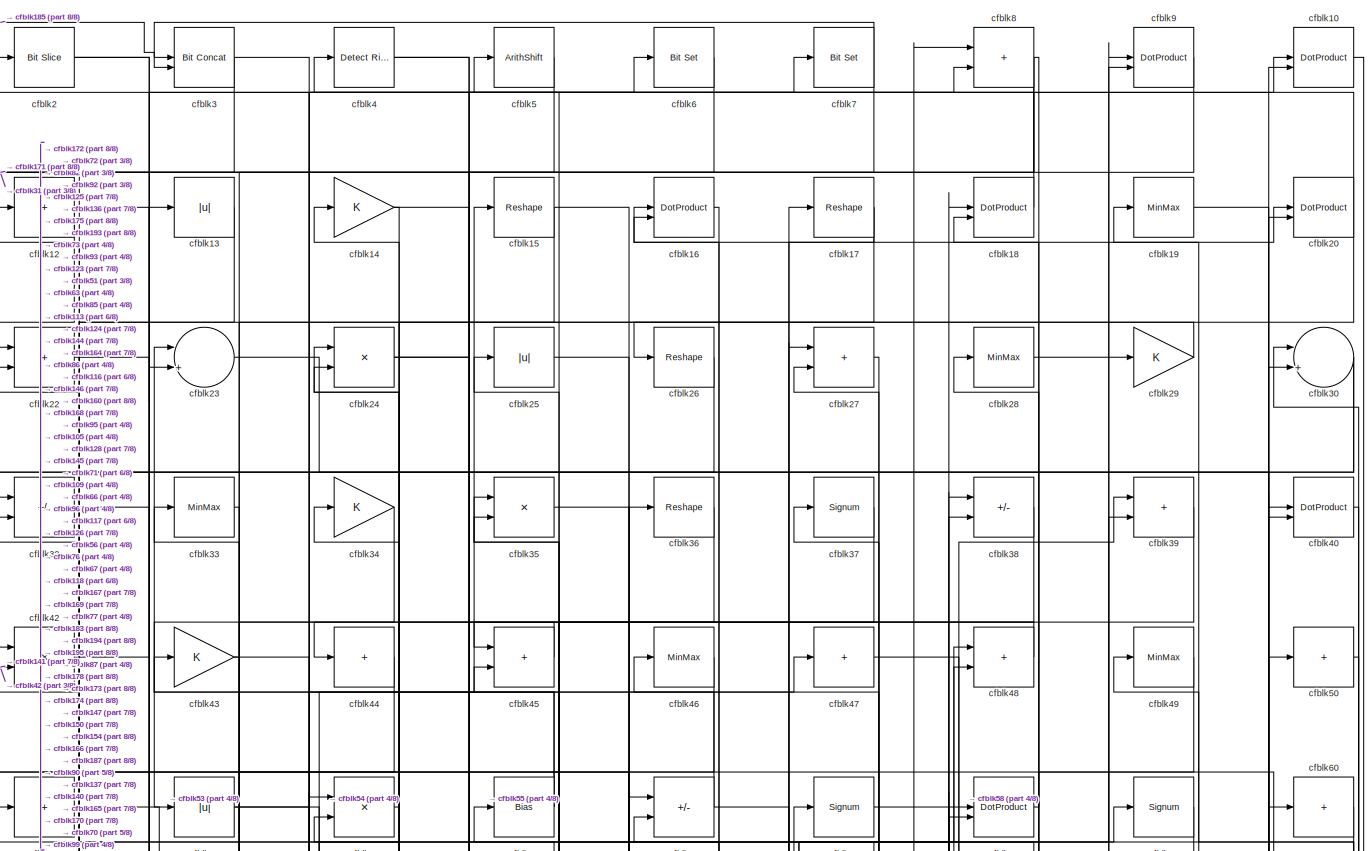
[diagram: root canvas - part 1/8, full width, top band]
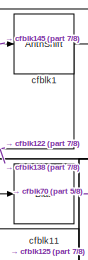
[diagram: root canvas - part 2/8, top left region]
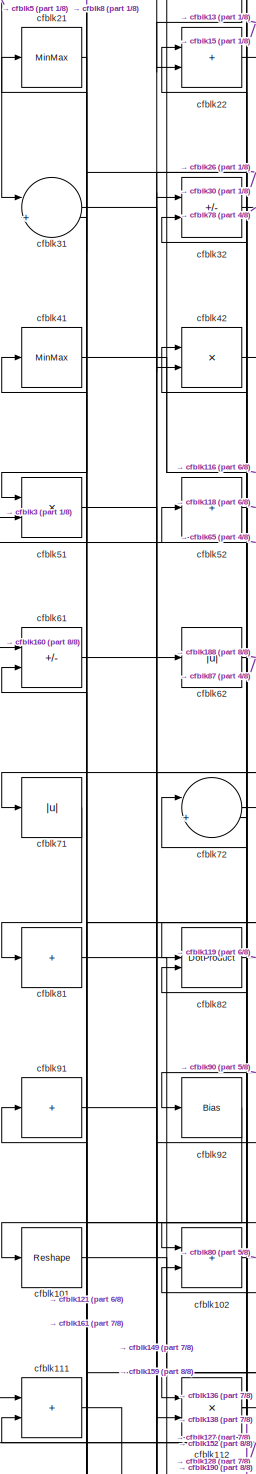
[diagram: root canvas - part 3/8, middle left region]
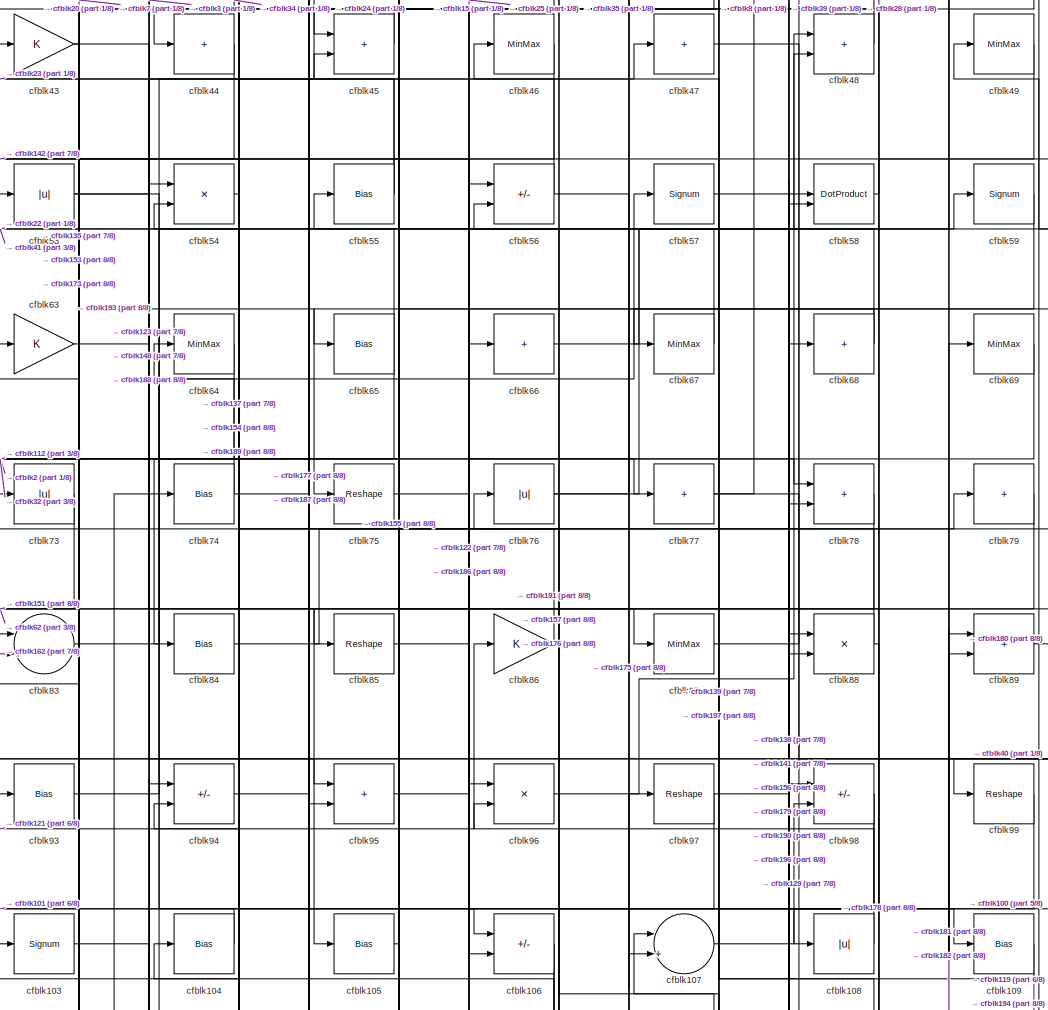
[diagram: root canvas - part 4/8, central region]
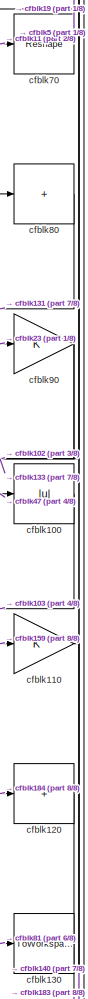
[diagram: root canvas - part 5/8, middle right region]
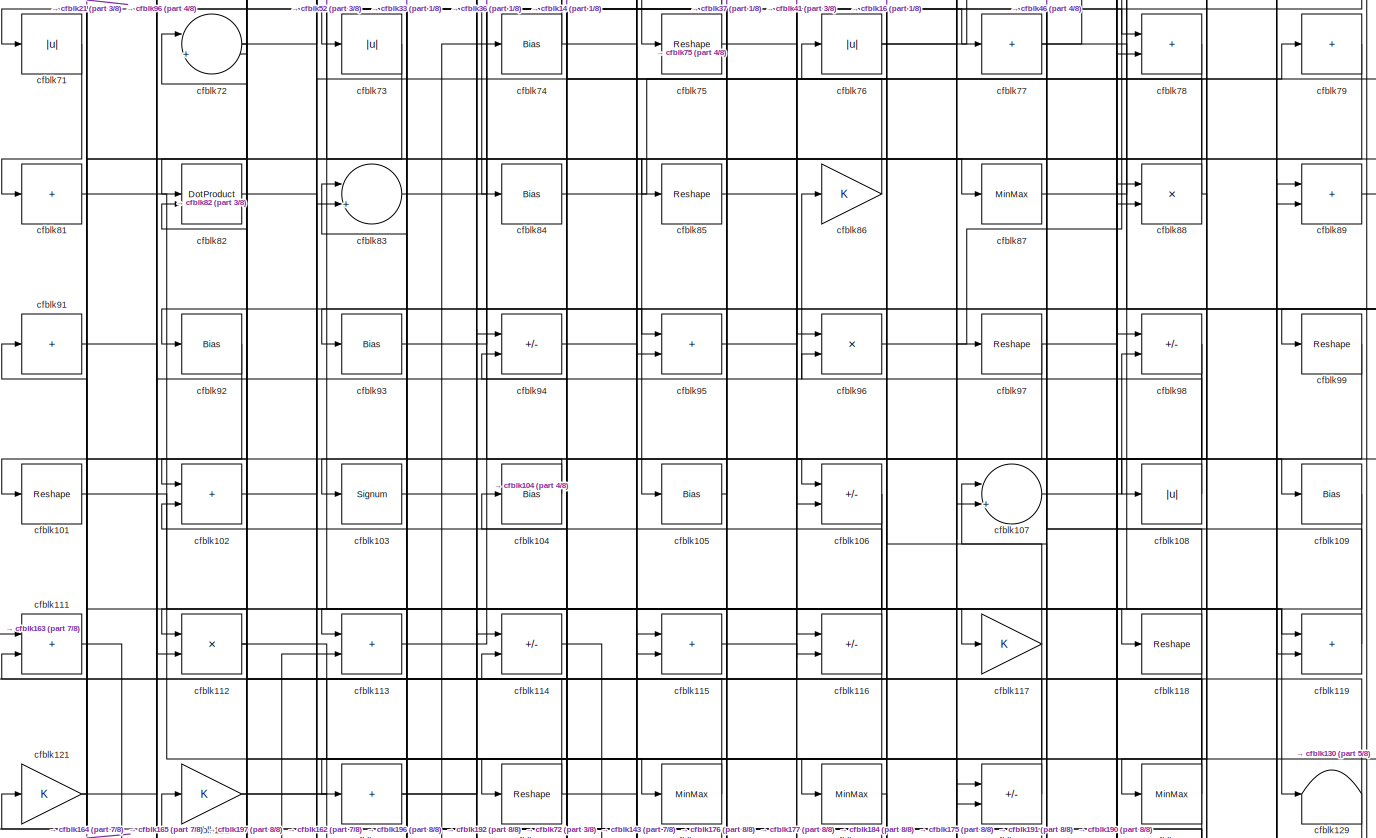
[diagram: root canvas - part 6/8, full width, middle band]
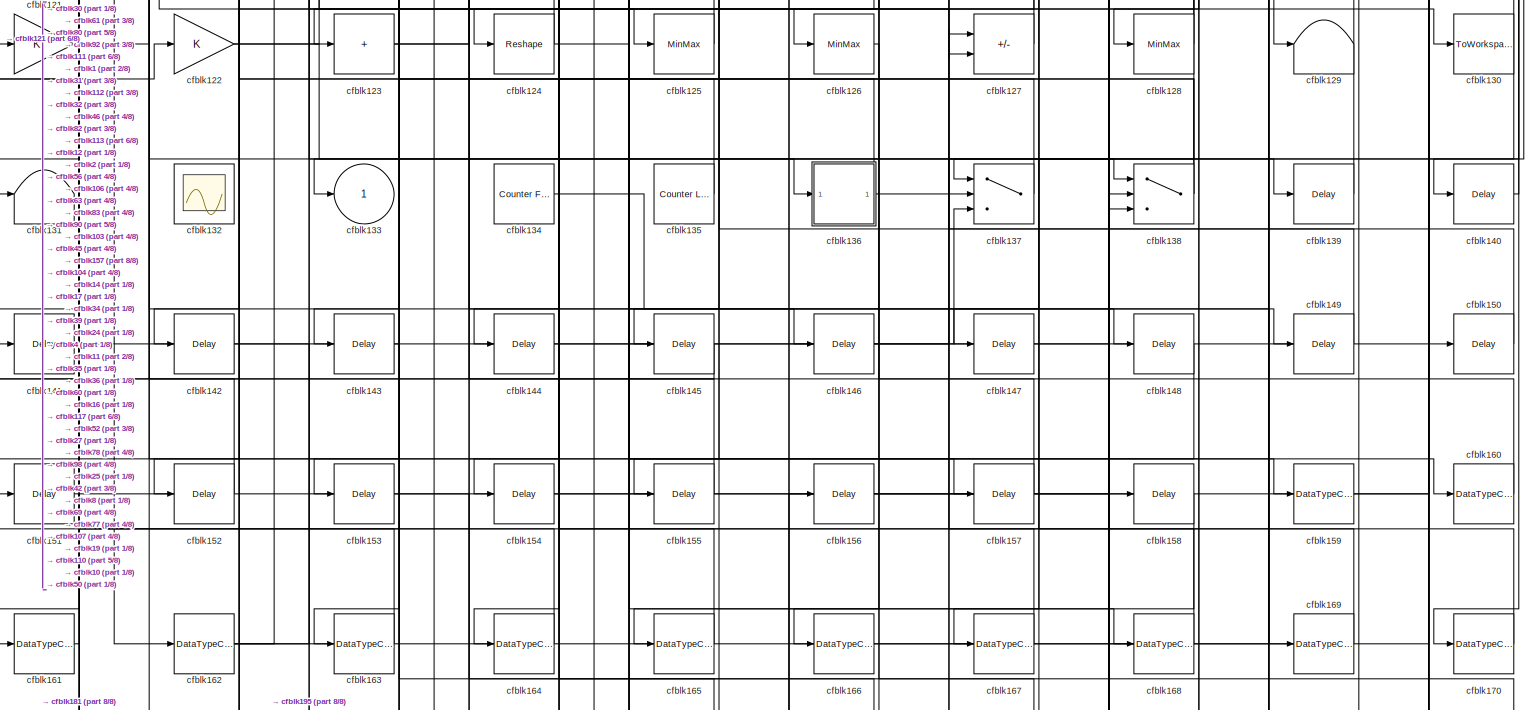
[diagram: root canvas - part 7/8, full width, bottom band]
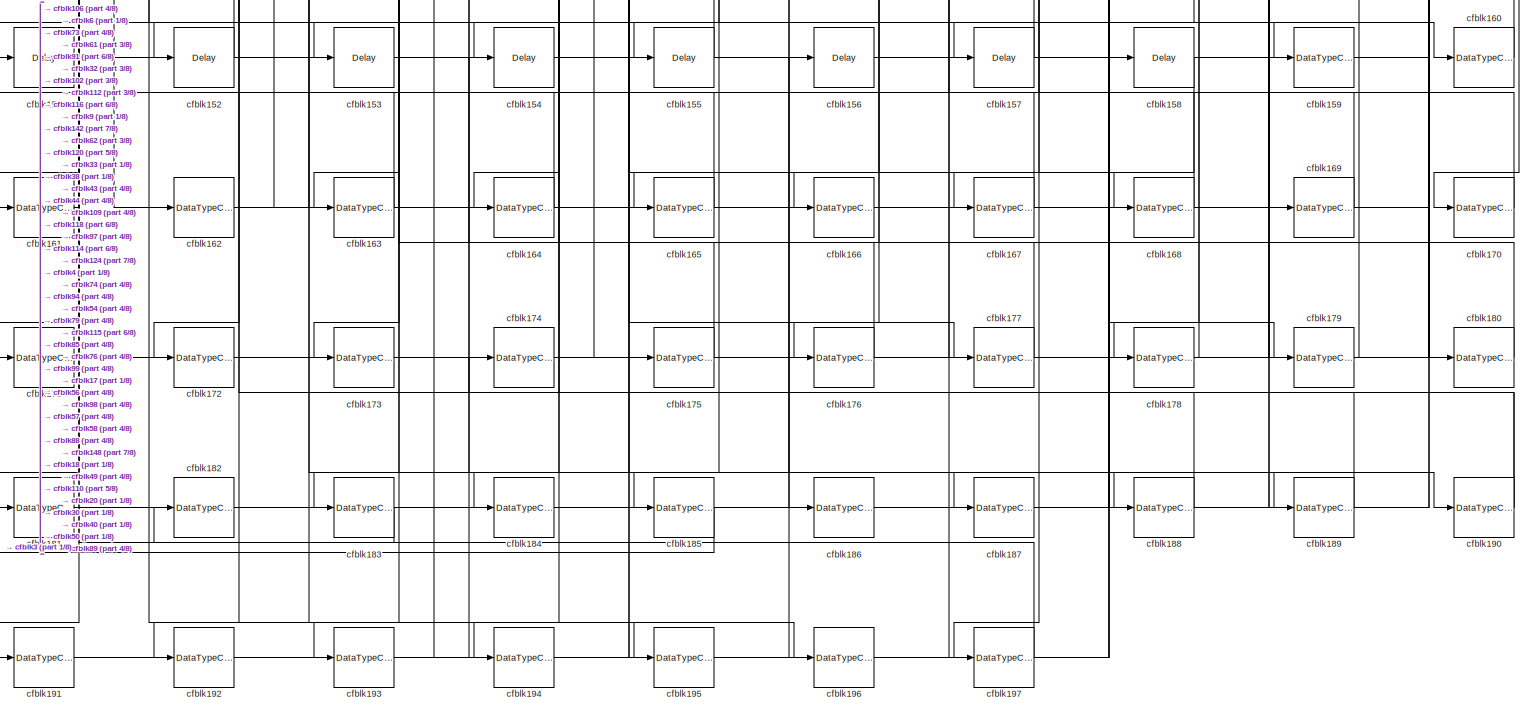
[diagram: root canvas - part 8/8, full width, bottom band]
MODEL slx_d8795197d14b
KIND model
CONFIG AbsTol = auto
CONFIG EnableMultiTasking = off
CONFIG FixedStep = auto
CONFIG MaxStep = auto
CONFIG MinStep = auto
CONFIG RelTol = 1e-3
CONFIG SampleTimeConstraint = Unconstrained
CONFIG SolverName = VariableStepAuto
CONFIG StartTime = 0.0
CONFIG StopTime = 10.0
BLOCK [ArithShift] cfblk1
  BitShiftNumber = 8
  InputPortMap = u0
BLOCK [DotProduct] cfblk10
  OutDataTypeStr = Inherit: Inherit via internal rule
BLOCK [Abs] cfblk100
  SaturateOnIntegerOverflow = off
BLOCK [Reshape] cfblk101
BLOCK [Sum] cfblk102
  IconShape = rectangular
BLOCK [Signum] cfblk103
BLOCK [Bias] cfblk104
  Bias = 0.0
  SaturateOnIntegerOverflow = off
BLOCK [Bias] cfblk105
  Bias = 0.0
  SaturateOnIntegerOverflow = off
BLOCK [Sum] cfblk106
  IconShape = rectangular
  Inputs = +-
BLOCK [Sum] cfblk107
  Inputs = |++
BLOCK [Abs] cfblk108
  SaturateOnIntegerOverflow = off
BLOCK [Bias] cfblk109
  Bias = 0.0
  SaturateOnIntegerOverflow = off
BLOCK [Bias] cfblk11
  Bias = 0.0
  SaturateOnIntegerOverflow = off
BLOCK [Gain] cfblk110
BLOCK [Sum] cfblk111
  IconShape = rectangular
BLOCK [Product] cfblk112
  Inputs = */
  RndMeth = Zero
  SaturateOnIntegerOverflow = on
BLOCK [Sum] cfblk113
  IconShape = rectangular
BLOCK [Sum] cfblk114
  IconShape = rectangular
  Inputs = +-
BLOCK [Sum] cfblk115
  IconShape = rectangular
BLOCK [Sum] cfblk116
  IconShape = rectangular
  Inputs = +-
BLOCK [Gain] cfblk117
BLOCK [Reshape] cfblk118
BLOCK [Sum] cfblk119
  IconShape = rectangular
BLOCK [Sum] cfblk12
  IconShape = rectangular
  Inputs = +
BLOCK [Sum] cfblk120
  IconShape = rectangular
  Inputs = +
BLOCK [Gain] cfblk121
BLOCK [Gain] cfblk122
BLOCK [Sum] cfblk123
  IconShape = rectangular
  Inputs = +
BLOCK [Reshape] cfblk124
BLOCK [MinMax] cfblk125
BLOCK [MinMax] cfblk126
BLOCK [Sum] cfblk127
  IconShape = rectangular
  Inputs = +-
BLOCK [MinMax] cfblk128
BLOCK [Terminator] cfblk129
BLOCK [Abs] cfblk13
  SaturateOnIntegerOverflow = off
BLOCK [ToWorkspace] cfblk130
  MaxDataPoints = inf
  SampleTime = -1
  SaveFormat = Timeseries
  VariableName = simout
BLOCK [Terminator] cfblk131
BLOCK [Scope] cfblk132
  Floating = on
  NumInputPorts = 1
  ScopeSpecificationString = Simulink.scopes.TimeScopeBlockCfg('CurrentConfiguration', extmgr.ConfigurationSet(extmgr.Configuration('Core','General UI',true,'FigureColor',[0.156862745098039 0.156862745098039 0.156862745098039]),extmgr.Configuration('Core','Source UI',true),extmgr.Configuration('Sources','WiredSimulink',true,'DataLoggingVariableName','ScopeData1','DataLoggingSaveFormat','StructureWithTime','DataLoggingLimitDat...<+2713ch>
BLOCK [Outport] cfblk133
  VectorParamsAs1DForOutWhenUnconnected = off
BLOCK [Reference] cfblk134  REF=hdlsllib/Sources/Counter
Free-Running
  SourceBlock = hdlsllib/Sources/Counter\nFree-Running
  SourceType = Counter Free-Running
BLOCK [Reference] cfblk135  REF=hdlsllib/Sources/Counter
Limited
  SourceBlock = hdlsllib/Sources/Counter\nLimited
  SourceType = Counter Limited
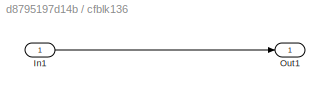
BLOCK [SubSystem] cfblk136
  LibrarySourceBlock = hdlsllib/Ports &\nSubsystems/Subsystem
BLOCK [Inport] cfblk136/In1
BLOCK [Outport] cfblk136/Out1
BLOCK [Switch] cfblk137
  InputSameDT = off
  SaturateOnIntegerOverflow = off
BLOCK [Switch] cfblk138
  InputSameDT = off
  SaturateOnIntegerOverflow = off
BLOCK [Delay] cfblk139
  InputPortMap = u0
  SampleTime = 1
BLOCK [Gain] cfblk14
BLOCK [Delay] cfblk140
  InputPortMap = u0
  SampleTime = 1
BLOCK [Delay] cfblk141
  InputPortMap = u0
  SampleTime = 1
BLOCK [Delay] cfblk142
  InputPortMap = u0
  SampleTime = 1
BLOCK [Delay] cfblk143
  InputPortMap = u0
  SampleTime = 1
BLOCK [Delay] cfblk144
  InputPortMap = u0
  SampleTime = 1
BLOCK [Delay] cfblk145
  InputPortMap = u0
  SampleTime = 1
BLOCK [Delay] cfblk146
  InputPortMap = u0
  SampleTime = 1
BLOCK [Delay] cfblk147
  InputPortMap = u0
  SampleTime = 1
BLOCK [Delay] cfblk148
  InputPortMap = u0
  SampleTime = 1
BLOCK [Delay] cfblk149
  InputPortMap = u0
  SampleTime = 1
BLOCK [Reshape] cfblk15
BLOCK [Delay] cfblk150
  InputPortMap = u0
  SampleTime = 1
BLOCK [Delay] cfblk151
  InputPortMap = u0
  SampleTime = 1
BLOCK [Delay] cfblk152
  InputPortMap = u0
  SampleTime = 1
BLOCK [Delay] cfblk153
  InputPortMap = u0
  SampleTime = 1
BLOCK [Delay] cfblk154
  InputPortMap = u0
  SampleTime = 1
BLOCK [Delay] cfblk155
  InputPortMap = u0
  SampleTime = 1
BLOCK [Delay] cfblk156
  InputPortMap = u0
  SampleTime = 1
BLOCK [Delay] cfblk157
  InputPortMap = u0
  SampleTime = 1
BLOCK [Delay] cfblk158
  InputPortMap = u0
  SampleTime = 1
BLOCK [DataTypeConversion] cfblk159
  OutDataTypeStr = uint8
  RndMeth = Floor
  SaturateOnIntegerOverflow = off
BLOCK [DotProduct] cfblk16
  OutDataTypeStr = Inherit: Inherit via internal rule
BLOCK [DataTypeConversion] cfblk160
  OutDataTypeStr = uint8
  RndMeth = Floor
  SaturateOnIntegerOverflow = off
BLOCK [DataTypeConversion] cfblk161
  OutDataTypeStr = uint8
  RndMeth = Floor
  SaturateOnIntegerOverflow = off
BLOCK [DataTypeConversion] cfblk162
  RndMeth = Floor
  SaturateOnIntegerOverflow = off
BLOCK [DataTypeConversion] cfblk163
  OutDataTypeStr = uint8
  RndMeth = Floor
  SaturateOnIntegerOverflow = off
BLOCK [DataTypeConversion] cfblk164
  OutDataTypeStr = uint8
  RndMeth = Floor
  SaturateOnIntegerOverflow = off
BLOCK [DataTypeConversion] cfblk165
  OutDataTypeStr = uint8
  RndMeth = Floor
  SaturateOnIntegerOverflow = off
BLOCK [DataTypeConversion] cfblk166
  OutDataTypeStr = uint8
  RndMeth = Floor
  SaturateOnIntegerOverflow = off
BLOCK [DataTypeConversion] cfblk167
  OutDataTypeStr = uint8
  RndMeth = Floor
  SaturateOnIntegerOverflow = off
BLOCK [DataTypeConversion] cfblk168
  OutDataTypeStr = uint8
  RndMeth = Floor
  SaturateOnIntegerOverflow = off
BLOCK [DataTypeConversion] cfblk169
  OutDataTypeStr = uint8
  RndMeth = Floor
  SaturateOnIntegerOverflow = off
BLOCK [Reshape] cfblk17
BLOCK [DataTypeConversion] cfblk170
  OutDataTypeStr = uint8
  RndMeth = Floor
  SaturateOnIntegerOverflow = off
BLOCK [DataTypeConversion] cfblk171
  OutDataTypeStr = uint8
  RndMeth = Floor
  SaturateOnIntegerOverflow = off
BLOCK [DataTypeConversion] cfblk172
  OutDataTypeStr = uint8
  RndMeth = Floor
  SaturateOnIntegerOverflow = off
BLOCK [DataTypeConversion] cfblk173
  OutDataTypeStr = uint8
  RndMeth = Floor
  SaturateOnIntegerOverflow = off
BLOCK [DataTypeConversion] cfblk174
  OutDataTypeStr = uint8
  RndMeth = Floor
  SaturateOnIntegerOverflow = off
BLOCK [DataTypeConversion] cfblk175
  RndMeth = Floor
  SaturateOnIntegerOverflow = off
BLOCK [DataTypeConversion] cfblk176
  OutDataTypeStr = uint8
  RndMeth = Floor
  SaturateOnIntegerOverflow = off
BLOCK [DataTypeConversion] cfblk177
  OutDataTypeStr = uint8
  RndMeth = Floor
  SaturateOnIntegerOverflow = off
BLOCK [DataTypeConversion] cfblk178
  OutDataTypeStr = uint8
  RndMeth = Floor
  SaturateOnIntegerOverflow = off
BLOCK [DataTypeConversion] cfblk179
  OutDataTypeStr = uint8
  RndMeth = Floor
  SaturateOnIntegerOverflow = off
BLOCK [DotProduct] cfblk18
  OutDataTypeStr = Inherit: Inherit via internal rule
BLOCK [DataTypeConversion] cfblk180
  OutDataTypeStr = uint8
  RndMeth = Floor
  SaturateOnIntegerOverflow = off
BLOCK [DataTypeConversion] cfblk181
  OutDataTypeStr = uint8
  RndMeth = Floor
  SaturateOnIntegerOverflow = off
BLOCK [DataTypeConversion] cfblk182
  OutDataTypeStr = uint8
  RndMeth = Floor
  SaturateOnIntegerOverflow = off
BLOCK [DataTypeConversion] cfblk183
  RndMeth = Floor
  SaturateOnIntegerOverflow = off
BLOCK [DataTypeConversion] cfblk184
  OutDataTypeStr = uint8
  RndMeth = Floor
  SaturateOnIntegerOverflow = off
BLOCK [DataTypeConversion] cfblk185
  OutDataTypeStr = uint8
  RndMeth = Floor
  SaturateOnIntegerOverflow = off
BLOCK [DataTypeConversion] cfblk186
  OutDataTypeStr = uint8
  RndMeth = Floor
  SaturateOnIntegerOverflow = off
BLOCK [DataTypeConversion] cfblk187
  OutDataTypeStr = uint8
  RndMeth = Floor
  SaturateOnIntegerOverflow = off
BLOCK [DataTypeConversion] cfblk188
  OutDataTypeStr = uint8
  RndMeth = Floor
  SaturateOnIntegerOverflow = off
BLOCK [DataTypeConversion] cfblk189
  OutDataTypeStr = uint8
  RndMeth = Floor
  SaturateOnIntegerOverflow = off
BLOCK [MinMax] cfblk19
BLOCK [DataTypeConversion] cfblk190
  RndMeth = Floor
  SaturateOnIntegerOverflow = off
BLOCK [DataTypeConversion] cfblk191
  OutDataTypeStr = uint8
  RndMeth = Floor
  SaturateOnIntegerOverflow = off
BLOCK [DataTypeConversion] cfblk192
  OutDataTypeStr = uint8
  RndMeth = Floor
  SaturateOnIntegerOverflow = off
BLOCK [DataTypeConversion] cfblk193
  RndMeth = Floor
  SaturateOnIntegerOverflow = off
BLOCK [DataTypeConversion] cfblk194
  OutDataTypeStr = uint8
  RndMeth = Floor
  SaturateOnIntegerOverflow = off
BLOCK [DataTypeConversion] cfblk195
  OutDataTypeStr = uint8
  RndMeth = Floor
  SaturateOnIntegerOverflow = off
BLOCK [DataTypeConversion] cfblk196
  OutDataTypeStr = uint8
  RndMeth = Floor
  SaturateOnIntegerOverflow = off
BLOCK [DataTypeConversion] cfblk197
  OutDataTypeStr = uint8
  RndMeth = Floor
  SaturateOnIntegerOverflow = off
BLOCK [Reference] cfblk2  REF=hdlsllib/Logic and Bit
Operations/Bit Slice
  SourceBlock = hdlsllib/Logic and Bit\nOperations/Bit Slice
  SourceType = Bit Slice
BLOCK [DotProduct] cfblk20
  OutDataTypeStr = Inherit: Inherit via internal rule
BLOCK [MinMax] cfblk21
BLOCK [Sum] cfblk22
  IconShape = rectangular
BLOCK [Sum] cfblk23
  Inputs = |++
BLOCK [Product] cfblk24
  Inputs = */
  RndMeth = Zero
  SaturateOnIntegerOverflow = on
BLOCK [Abs] cfblk25
  SaturateOnIntegerOverflow = off
BLOCK [Reshape] cfblk26
BLOCK [Sum] cfblk27
  IconShape = rectangular
BLOCK [MinMax] cfblk28
BLOCK [Gain] cfblk29
BLOCK [Reference] cfblk3  REF=hdlsllib/Logic and Bit
Operations/Bit Concat
  SourceBlock = hdlsllib/Logic and Bit\nOperations/Bit Concat
  SourceType = Bit Concat
BLOCK [Sum] cfblk30
  Inputs = |++
BLOCK [Sum] cfblk31
  Inputs = |++
BLOCK [Sum] cfblk32
  IconShape = rectangular
  Inputs = +-
BLOCK [MinMax] cfblk33
BLOCK [Gain] cfblk34
BLOCK [Product] cfblk35
  Inputs = */
  RndMeth = Zero
  SaturateOnIntegerOverflow = on
BLOCK [Reshape] cfblk36
BLOCK [Signum] cfblk37
BLOCK [Sum] cfblk38
  IconShape = rectangular
  Inputs = +-
BLOCK [Sum] cfblk39
  IconShape = rectangular
BLOCK [Reference] cfblk4  REF=hdlsllib/Logic and Bit
Operations/Detect Rise
Nonnegative
  SourceBlock = hdlsllib/Logic and Bit\nOperations/Detect Rise\nNonnegative
  SourceType = Detect Rise Nonnegative
BLOCK [DotProduct] cfblk40
  OutDataTypeStr = Inherit: Inherit via internal rule
BLOCK [MinMax] cfblk41
BLOCK [Product] cfblk42
  Inputs = */
  RndMeth = Zero
  SaturateOnIntegerOverflow = on
BLOCK [Gain] cfblk43
BLOCK [Sum] cfblk44
  IconShape = rectangular
  Inputs = +
BLOCK [Sum] cfblk45
  IconShape = rectangular
BLOCK [MinMax] cfblk46
BLOCK [Sum] cfblk47
  IconShape = rectangular
  Inputs = +
BLOCK [Sum] cfblk48
  IconShape = rectangular
BLOCK [MinMax] cfblk49
BLOCK [ArithShift] cfblk5
  BitShiftNumber = 8
  InputPortMap = u0
BLOCK [Sum] cfblk50
  IconShape = rectangular
  Inputs = +
BLOCK [Product] cfblk51
  Inputs = */
  RndMeth = Zero
  SaturateOnIntegerOverflow = on
BLOCK [Sum] cfblk52
  IconShape = rectangular
  Inputs = +
BLOCK [Abs] cfblk53
  SaturateOnIntegerOverflow = off
BLOCK [Product] cfblk54
  Inputs = */
  RndMeth = Zero
  SaturateOnIntegerOverflow = on
BLOCK [Bias] cfblk55
  Bias = 0.0
  SaturateOnIntegerOverflow = off
BLOCK [Sum] cfblk56
  IconShape = rectangular
  Inputs = +-
BLOCK [Signum] cfblk57
BLOCK [DotProduct] cfblk58
  OutDataTypeStr = Inherit: Inherit via internal rule
BLOCK [Signum] cfblk59
BLOCK [Reference] cfblk6  REF=simulink/Logic and Bit
Operations/Bit Set
  LibrarySourceBlock = hdlsllib/Logic and Bit\nOperations/Bit Set
  SourceBlock = simulink/Logic and Bit\nOperations/Bit Set
  SourceType = Bit Set
BLOCK [Sum] cfblk60
  IconShape = rectangular
  Inputs = +
BLOCK [Sum] cfblk61
  IconShape = rectangular
  Inputs = +-
BLOCK [Abs] cfblk62
  SaturateOnIntegerOverflow = off
BLOCK [Gain] cfblk63
BLOCK [MinMax] cfblk64
BLOCK [Bias] cfblk65
  Bias = 0.0
  SaturateOnIntegerOverflow = off
BLOCK [Sum] cfblk66
  IconShape = rectangular
  Inputs = +
BLOCK [MinMax] cfblk67
BLOCK [Sum] cfblk68
  IconShape = rectangular
  Inputs = +
BLOCK [MinMax] cfblk69
BLOCK [Reference] cfblk7  REF=simulink/Logic and Bit
Operations/Bit Set
  LibrarySourceBlock = hdlsllib/Logic and Bit\nOperations/Bit Set
  SourceBlock = simulink/Logic and Bit\nOperations/Bit Set
  SourceType = Bit Set
BLOCK [Reshape] cfblk70
BLOCK [Abs] cfblk71
  SaturateOnIntegerOverflow = off
BLOCK [Sum] cfblk72
  Inputs = |++
BLOCK [Abs] cfblk73
  SaturateOnIntegerOverflow = off
BLOCK [Bias] cfblk74
  Bias = 0.0
  SaturateOnIntegerOverflow = off
BLOCK [Reshape] cfblk75
BLOCK [Abs] cfblk76
  SaturateOnIntegerOverflow = off
BLOCK [Sum] cfblk77
  IconShape = rectangular
  Inputs = +
BLOCK [Sum] cfblk78
  IconShape = rectangular
BLOCK [Sum] cfblk79
  IconShape = rectangular
  Inputs = +
BLOCK [Sum] cfblk8
  IconShape = rectangular
BLOCK [Sum] cfblk80
  IconShape = rectangular
  Inputs = +
BLOCK [Sum] cfblk81
  IconShape = rectangular
  Inputs = +
BLOCK [DotProduct] cfblk82
  OutDataTypeStr = Inherit: Inherit via internal rule
BLOCK [Sum] cfblk83
  Inputs = |++
BLOCK [Bias] cfblk84
  Bias = 0.0
  SaturateOnIntegerOverflow = off
BLOCK [Reshape] cfblk85
BLOCK [Gain] cfblk86
BLOCK [MinMax] cfblk87
BLOCK [Product] cfblk88
  Inputs = */
  RndMeth = Zero
  SaturateOnIntegerOverflow = on
BLOCK [Sum] cfblk89
  IconShape = rectangular
BLOCK [DotProduct] cfblk9
  OutDataTypeStr = Inherit: Inherit via internal rule
BLOCK [Gain] cfblk90
BLOCK [Sum] cfblk91
  IconShape = rectangular
  Inputs = +
BLOCK [Bias] cfblk92
  Bias = 0.0
  SaturateOnIntegerOverflow = off
BLOCK [Bias] cfblk93
  Bias = 0.0
  SaturateOnIntegerOverflow = off
BLOCK [Sum] cfblk94
  IconShape = rectangular
  Inputs = +-
BLOCK [Sum] cfblk95
  IconShape = rectangular
BLOCK [Product] cfblk96
  Inputs = */
  RndMeth = Zero
  SaturateOnIntegerOverflow = on
BLOCK [Reshape] cfblk97
BLOCK [Sum] cfblk98
  IconShape = rectangular
  Inputs = +-
BLOCK [Reshape] cfblk99
LINE cfblk100:1 -> cfblk103:1
LINE cfblk101:1 -> cfblk117:1
LINE cfblk102:1 -> cfblk80:1
LINE cfblk103:1 -> cfblk148:1
LINE cfblk104:1 -> cfblk101:1
LINE cfblk105:1 -> cfblk35:1
NET cfblk106:1 -> cfblk123:1, cfblk191:1
LINE cfblk107:1 -> cfblk98:2
LINE cfblk108:1 -> cfblk86:1
LINE cfblk109:1 -> cfblk194:1
LINE cfblk10:1 -> cfblk137:1
LINE cfblk110:1 -> cfblk140:1
LINE cfblk111:1 -> cfblk162:1
NET cfblk112:1 -> cfblk127:2, cfblk152:1
LINE cfblk113:1 -> cfblk36:1
LINE cfblk114:1 -> cfblk175:1
LINE cfblk115:1 -> cfblk190:1
NET cfblk116:1 -> cfblk192:1, cfblk72:1
NET cfblk117:1 -> cfblk143:1, cfblk16:1
NET cfblk118:1 -> cfblk184:1, cfblk37:1
LINE cfblk119:1 -> cfblk46:1
LINE cfblk11:1 -> cfblk70:1
LINE cfblk120:1 -> cfblk183:1
NET cfblk121:1 -> cfblk21:1, cfblk96:2
NET cfblk122:1 -> cfblk138:1, cfblk56:1
NET cfblk123:1 -> cfblk10:1, cfblk45:2
NET cfblk124:1 -> cfblk12:1, cfblk157:1
LINE cfblk125:1 -> cfblk11:1
LINE cfblk126:1 -> cfblk166:1
LINE cfblk127:1 -> cfblk52:1
NET cfblk128:1 -> cfblk147:1, cfblk25:1, cfblk42:1
NET cfblk12:1 -> cfblk136:1, cfblk22:2
LINE cfblk134:1 -> cfblk169:1
LINE cfblk135:1 -> cfblk83:1
LINE cfblk136/In1:1 -> cfblk136/Out1:1
NET cfblk136:1 -> cfblk139:1, cfblk32:2
LINE cfblk137:1 -> cfblk104:1
NET cfblk138:1 -> cfblk63:1, cfblk82:2
LINE cfblk139:1 -> cfblk107:1
LINE cfblk13:1 -> cfblk92:1
LINE cfblk140:1 -> cfblk30:1
LINE cfblk141:1 -> cfblk78:2
LINE cfblk142:1 -> cfblk195:1
LINE cfblk143:1 -> cfblk163:1
LINE cfblk144:1 -> cfblk137:2
LINE cfblk145:1 -> cfblk1:1
LINE cfblk146:1 -> cfblk137:3
LINE cfblk147:1 -> cfblk10:2
LINE cfblk148:1 -> cfblk181:1
LINE cfblk149:1 -> cfblk127:1
NET cfblk14:1 -> cfblk116:2, cfblk124:1
LINE cfblk150:1 -> cfblk35:2
LINE cfblk151:1 -> cfblk98:1
LINE cfblk152:1 -> cfblk32:1
LINE cfblk153:1 -> cfblk189:1
LINE cfblk154:1 -> cfblk40:2
LINE cfblk155:1 -> cfblk54:1
LINE cfblk156:1 -> cfblk88:2
LINE cfblk157:1 -> cfblk56:2
LINE cfblk158:1 -> cfblk185:1
LINE cfblk159:1 -> cfblk110:1
NET cfblk15:1 -> cfblk66:1, cfblk72:2
LINE cfblk160:1 -> cfblk61:1
LINE cfblk161:1 -> cfblk61:2
NET cfblk162:1 -> cfblk113:2, cfblk69:1, cfblk83:2
LINE cfblk163:1 -> cfblk111:1
LINE cfblk164:1 -> cfblk111:2
LINE cfblk165:1 -> cfblk121:1
LINE cfblk166:1 -> cfblk60:1
LINE cfblk167:1 -> cfblk14:1
LINE cfblk168:1 -> cfblk27:1
LINE cfblk169:1 -> cfblk27:2
LINE cfblk16:1 -> cfblk126:1
LINE cfblk170:1 -> cfblk34:1
LINE cfblk171:1 -> cfblk50:1
LINE cfblk172:1 -> cfblk30:2
LINE cfblk173:1 -> cfblk9:1
LINE cfblk174:1 -> cfblk9:2
NET cfblk175:1 -> cfblk20:2, cfblk33:1, cfblk58:2, cfblk97:1
LINE cfblk176:1 -> cfblk114:1
LINE cfblk177:1 -> cfblk114:2
LINE cfblk178:1 -> cfblk18:2
LINE cfblk179:1 -> cfblk49:1
NET cfblk17:1 -> cfblk164:1, cfblk16:2
LINE cfblk180:1 -> cfblk76:1
LINE cfblk181:1 -> cfblk89:1
LINE cfblk182:1 -> cfblk89:2
NET cfblk183:1 -> cfblk182:1, cfblk18:1
LINE cfblk184:1 -> cfblk120:1
LINE cfblk185:1 -> cfblk3:2
LINE cfblk186:1 -> cfblk158:1
LINE cfblk187:1 -> cfblk40:1
LINE cfblk188:1 -> cfblk94:1
LINE cfblk189:1 -> cfblk94:2
LINE cfblk18:1 -> cfblk4:1
NET cfblk190:1 -> cfblk102:2, cfblk58:1
LINE cfblk191:1 -> cfblk115:1
LINE cfblk192:1 -> cfblk115:2
NET cfblk193:1 -> cfblk156:1, cfblk174:1, cfblk17:1, cfblk74:1
LINE cfblk194:1 -> cfblk38:1
LINE cfblk195:1 -> cfblk38:2
LINE cfblk196:1 -> cfblk88:1
LINE cfblk197:1 -> cfblk91:1
LINE cfblk19:1 -> cfblk150:1
NET cfblk1:1 -> cfblk122:1, cfblk138:3
NET cfblk20:1 -> cfblk2:1, cfblk73:1
LINE cfblk21:1 -> cfblk51:1
LINE cfblk22:1 -> cfblk23:2
LINE cfblk23:1 -> cfblk90:1
NET cfblk24:1 -> cfblk168:1, cfblk6:1
LINE cfblk25:1 -> cfblk96:1
LINE cfblk26:1 -> cfblk82:1
LINE cfblk27:1 -> cfblk167:1
LINE cfblk28:1 -> cfblk29:1
LINE cfblk29:1 -> cfblk26:1
NET cfblk2:1 -> cfblk125:1, cfblk77:1
NET cfblk30:1 -> cfblk141:1, cfblk42:2
LINE cfblk31:1 -> cfblk149:1
LINE cfblk32:1 -> cfblk78:1
LINE cfblk33:1 -> cfblk113:1
LINE cfblk34:1 -> cfblk53:1
LINE cfblk35:1 -> cfblk109:1
LINE cfblk36:1 -> cfblk145:1
LINE cfblk37:1 -> cfblk71:1
LINE cfblk38:1 -> cfblk193:1
LINE cfblk39:1 -> cfblk144:1
NET cfblk3:1 -> cfblk51:2, cfblk85:1
LINE cfblk40:1 -> cfblk99:1
LINE cfblk41:1 -> cfblk116:1
LINE cfblk42:1 -> cfblk13:1
NET cfblk43:1 -> cfblk153:1, cfblk95:1
LINE cfblk44:1 -> cfblk173:1
LINE cfblk45:1 -> cfblk44:1
LINE cfblk46:1 -> cfblk142:1
LINE cfblk47:1 -> cfblk100:1
LINE cfblk48:1 -> cfblk45:1
LINE cfblk49:1 -> cfblk178:1
NET cfblk4:1 -> cfblk146:1, cfblk160:1
LINE cfblk50:1 -> cfblk170:1
LINE cfblk51:1 -> cfblk62:1
LINE cfblk52:1 -> cfblk118:1
NET cfblk53:1 -> cfblk106:1, cfblk65:1
LINE cfblk54:1 -> cfblk24:1
NET cfblk55:1 -> cfblk15:1, cfblk43:1
NET cfblk56:1 -> cfblk107:2, cfblk23:1
LINE cfblk57:1 -> cfblk179:1
LINE cfblk58:1 -> cfblk28:1
LINE cfblk59:1 -> cfblk75:1
LINE cfblk5:1 -> cfblk31:1
LINE cfblk60:1 -> cfblk165:1
LINE cfblk61:1 -> cfblk159:1
NET cfblk62:1 -> cfblk188:1, cfblk87:1
LINE cfblk63:1 -> cfblk7:1
LINE cfblk64:1 -> cfblk84:1
NET cfblk65:1 -> cfblk112:2, cfblk41:1
LINE cfblk66:1 -> cfblk48:2
LINE cfblk67:1 -> cfblk22:1
NET cfblk68:1 -> cfblk55:1, cfblk67:1
LINE cfblk69:1 -> cfblk106:2
LINE cfblk6:1 -> cfblk171:1
NET cfblk70:1 -> cfblk19:1, cfblk5:1
LINE cfblk71:1 -> cfblk81:1
NET cfblk72:1 -> cfblk112:1, cfblk8:2
LINE cfblk73:1 -> cfblk151:1
NET cfblk74:1 -> cfblk177:1, cfblk64:1
LINE cfblk75:1 -> cfblk119:1
NET cfblk76:1 -> cfblk20:1, cfblk39:2
NET cfblk77:1 -> cfblk129:1, cfblk8:1
LINE cfblk78:1 -> cfblk105:1
LINE cfblk79:1 -> cfblk155:1
NET cfblk7:1 -> cfblk3:1, cfblk93:1
LINE cfblk80:1 -> cfblk131:1
LINE cfblk81:1 -> cfblk130:1
LINE cfblk82:1 -> cfblk119:2
LINE cfblk83:1 -> cfblk59:1
LINE cfblk84:1 -> cfblk79:1
LINE cfblk85:1 -> cfblk186:1
LINE cfblk86:1 -> cfblk24:2
LINE cfblk87:1 -> cfblk39:1
NET cfblk88:1 -> cfblk108:1, cfblk54:2
LINE cfblk89:1 -> cfblk180:1
NET cfblk8:1 -> cfblk128:1, cfblk31:2, cfblk95:2
NET cfblk90:1 -> cfblk102:1, cfblk133:1
LINE cfblk91:1 -> cfblk196:1
LINE cfblk92:1 -> cfblk161:1
LINE cfblk93:1 -> cfblk57:1
LINE cfblk94:1 -> cfblk187:1
LINE cfblk95:1 -> cfblk47:1
LINE cfblk96:1 -> cfblk48:1
NET cfblk97:1 -> cfblk154:1, cfblk68:1
NET cfblk98:1 -> cfblk138:2, cfblk197:1
LINE cfblk99:1 -> cfblk176:1
LINE cfblk9:1 -> cfblk172:1
note: NET lines group one-source signal fan-out (src -> all destinations, sorted); 1:1 wires keep LINE
